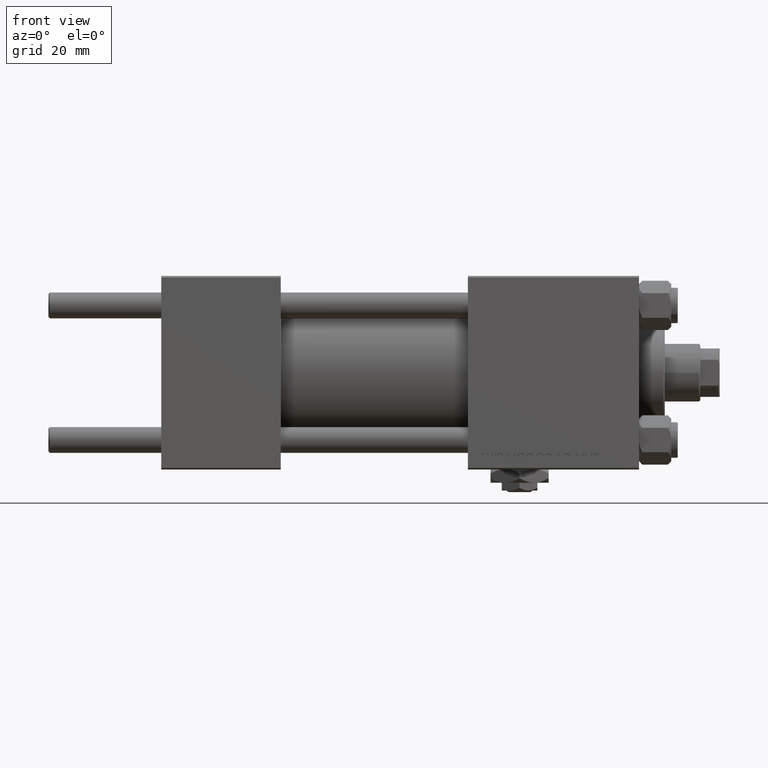
[diagram: clean part render]
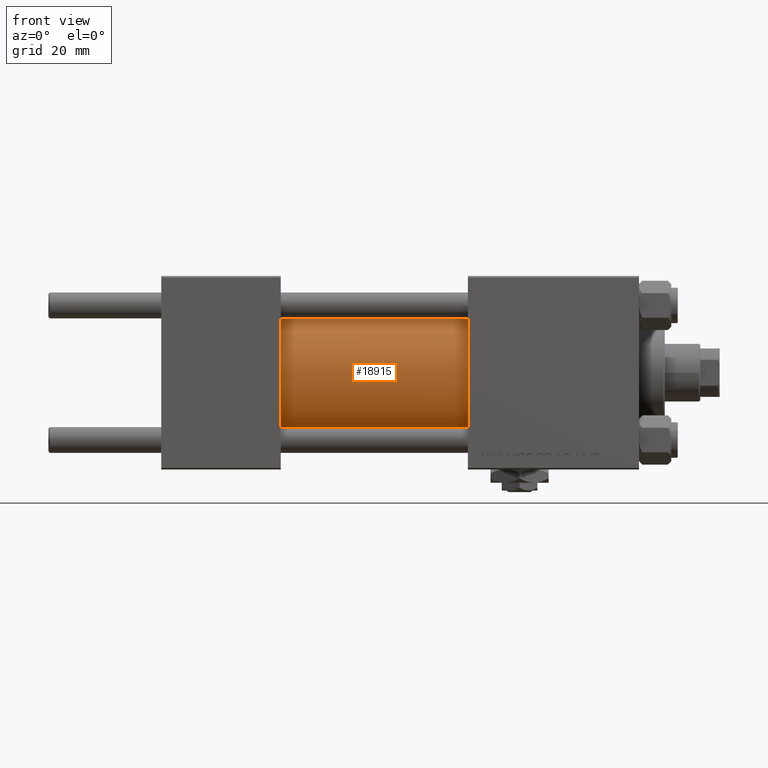
[diagram: same view with one face highlighted and labeled with its STEP entity id]
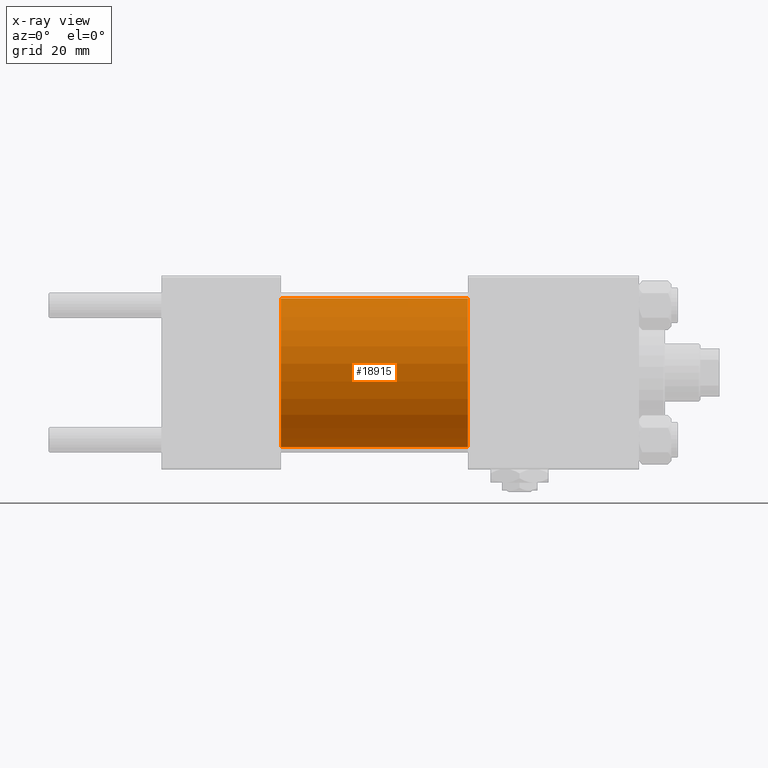
[diagram: x-ray of the same camera — body ghosted, the highlighted face saturated]
A machine part, front view. The second image highlights one B-rep face of the part: STEP entity #18915.
The next image is the same camera in x-ray: the body ghosted, the highlighted face saturated — about 0% of this face is hidden behind the body in this view.
In plain terms, the highlighted cylindrical surface (partial cylindrical patch) has radius 23 mm, axis along (-1, -0, -0).
Its self-contained STEP definition (entity closure, byte-faithful):
#3545 = ORIENTED_EDGE ( 'NONE', *, *, #40154, .F. ) ;
#5036 = CARTESIAN_POINT ( 'NONE',  ( 95.00000000000000000, 2.816687638038911957E-15, -23.00000000000000000 ) ) ;
#6195 = CARTESIAN_POINT ( 'NONE',  ( 95.00000000000000000, 2.816687638038911957E-15, -23.00000000000000000 ) ) ;
#6336 = CARTESIAN_POINT ( 'NONE',  ( 37.00000000000000000, 0.000000000000000000, 23.00000000000000000 ) ) ;
#6980 = DIRECTION ( 'NONE',  ( 0.000000000000000000, 0.000000000000000000, 1.000000000000000000 ) ) ;
#8167 = VECTOR ( 'NONE', #19717, 1000.000000000000000 ) ;
#10881 = CARTESIAN_POINT ( 'NONE',  ( 95.00000000000000000, 0.000000000000000000, 0.000000000000000000 ) ) ;
#11989 = DIRECTION ( 'NONE',  ( 1.000000000000000000, -0.000000000000000000, 0.000000000000000000 ) ) ;
#12082 = DIRECTION ( 'NONE',  ( 1.000000000000000000, 0.000000000000000000, 0.000000000000000000 ) ) ;
#13271 = EDGE_CURVE ( 'NONE', #25895, #21820, #20200, .T. ) ;
#16630 = VERTEX_POINT ( 'NONE', #5036 ) ;
#18372 = VECTOR ( 'NONE', #37990, 1000.000000000000000 ) ;
#18915 = ADVANCED_FACE ( 'NONE', ( #46608 ), #51050, .T. ) ;
#19717 = DIRECTION ( 'NONE',  ( -1.000000000000000000, -0.000000000000000000, -0.000000000000000000 ) ) ;
#20200 = CIRCLE ( 'NONE', #40199, 23.00000000000000000 ) ;
#21820 = VERTEX_POINT ( 'NONE', #39217 ) ;
#23878 = CARTESIAN_POINT ( 'NONE',  ( 95.00000000000000000, 0.000000000000000000, 23.00000000000000000 ) ) ;
#24748 = DIRECTION ( 'NONE',  ( 0.000000000000000000, 0.000000000000000000, 1.000000000000000000 ) ) ;
#25895 = VERTEX_POINT ( 'NONE', #6336 ) ;
#30544 = EDGE_CURVE ( 'NONE', #48314, #25895, #43457, .T. ) ;
#30959 = DIRECTION ( 'NONE',  ( -1.000000000000000000, -0.000000000000000000, -0.000000000000000000 ) ) ;
#31201 = LINE ( 'NONE', #6195, #18372 ) ;
#32319 = CARTESIAN_POINT ( 'NONE',  ( 37.00000000000000000, 0.000000000000000000, 0.000000000000000000 ) ) ;
#37990 = DIRECTION ( 'NONE',  ( -1.000000000000000000, -0.000000000000000000, -0.000000000000000000 ) ) ;
#39217 = CARTESIAN_POINT ( 'NONE',  ( 37.00000000000000000, 2.816687638038911957E-15, -23.00000000000000000 ) ) ;
#39480 = CARTESIAN_POINT ( 'NONE',  ( 95.00000000000000000, 0.000000000000000000, 0.000000000000000000 ) ) ;
#39486 = CARTESIAN_POINT ( 'NONE',  ( 95.00000000000000000, 0.000000000000000000, 23.00000000000000000 ) ) ;
#40154 = EDGE_CURVE ( 'NONE', #16630, #21820, #31201, .T. ) ;
#40199 = AXIS2_PLACEMENT_3D ( 'NONE', #32319, #11989, #24748 ) ;
#42536 = EDGE_CURVE ( 'NONE', #48314, #16630, #46660, .T. ) ;
#43457 = LINE ( 'NONE', #23878, #8167 ) ;
#43505 = ORIENTED_EDGE ( 'NONE', *, *, #42536, .F. ) ;
#43645 = EDGE_LOOP ( 'NONE', ( #3545, #43505, #46187, #50423 ) ) ;
#45028 = AXIS2_PLACEMENT_3D ( 'NONE', #39480, #12082, #51473 ) ;
#46187 = ORIENTED_EDGE ( 'NONE', *, *, #30544, .T. ) ;
#46608 = FACE_OUTER_BOUND ( 'NONE', #43645, .T. ) ;
#46660 = CIRCLE ( 'NONE', #45028, 23.00000000000000000 ) ;
#48314 = VERTEX_POINT ( 'NONE', #39486 ) ;
#50423 = ORIENTED_EDGE ( 'NONE', *, *, #13271, .T. ) ;
#51050 = CYLINDRICAL_SURFACE ( 'NONE', #51222, 23.00000000000000000 ) ;
#51222 = AXIS2_PLACEMENT_3D ( 'NONE', #10881, #30959, #6980 ) ;
#51473 = DIRECTION ( 'NONE',  ( 0.000000000000000000, 0.000000000000000000, -1.000000000000000000 ) ) ;